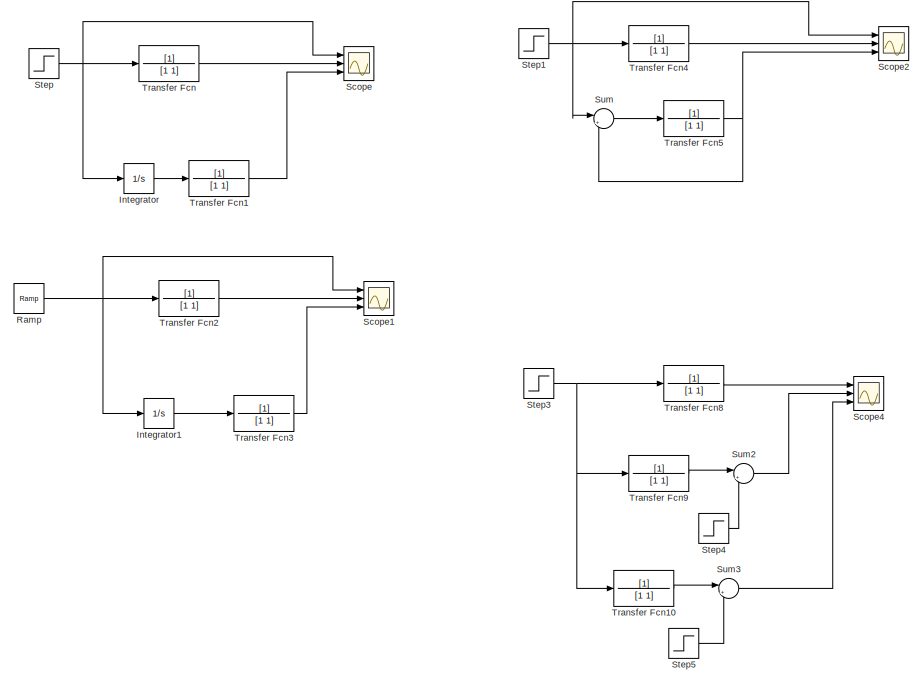
[diagram: root canvas - part 1/2, left side, full height]
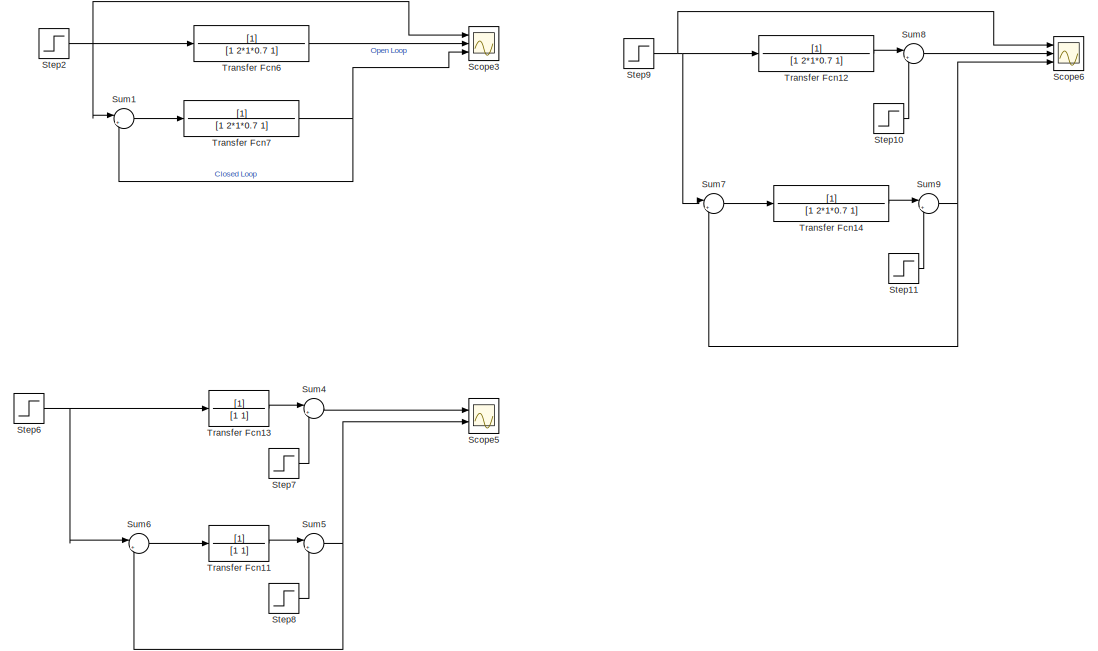
[diagram: root canvas - part 2/2, right side, full height]
MODEL slx_0609dc672f6a
KIND model
CONFIG AbsTol = auto
CONFIG EnableMultiTasking = off
CONFIG FixedStep = auto
CONFIG MaxStep = auto
CONFIG MinStep = auto
CONFIG RelTol = 1e-3
CONFIG SampleTimeConstraint = Unconstrained
CONFIG SolverName = VariableStepAuto
CONFIG StartTime = 0.0
CONFIG StopTime = 10.0
BLOCK [Integrator] Integrator
  Ports = [1, 1]
BLOCK [Integrator] Integrator1
  Ports = [1, 1]
BLOCK [Reference] Ramp  REF=simulink/Sources/Ramp
  Ports = [0, 1]
  SourceBlock = simulink/Sources/Ramp
  SourceProductBaseCode = SL
  SourceType = Ramp
BLOCK [Scope] Scope
  Floating = off
  NumInputPorts = 3
  Ports = [3]
  ScopeSpecificationString = Simulink.scopes.TimeScopeBlockCfg('CurrentConfiguration', extmgr.ConfigurationSet(extmgr.Configuration('Core','General UI',true),extmgr.Configuration('Core','Source UI',true),extmgr.Configuration('Sources','WiredSimulink',true),extmgr.Configuration('Visuals','Time Domain',true,'SerializedDisplays',{struct('MinYLimReal','-1.00002','MaxYLimReal','9.00014','YLabelReal','','MinYLimMag','0.00000','MaxY...<+1410ch>
BLOCK [Scope] Scope1
  Floating = off
  NumInputPorts = 3
  Ports = [3]
  ScopeSpecificationString = Simulink.scopes.TimeScopeBlockCfg('CurrentConfiguration', extmgr.ConfigurationSet(extmgr.Configuration('Core','General UI',true),extmgr.Configuration('Core','Source UI',true),extmgr.Configuration('Sources','WiredSimulink',true,'DataLoggingVariableName','ScopeData1'),extmgr.Configuration('Visuals','Time Domain',true,'SerializedDisplays',{struct('MinYLimReal','-1.125','MaxYLimReal','10.125','YLabelR...<+1406ch>
BLOCK [Scope] Scope2
  Floating = off
  NumInputPorts = 3
  Ports = [3]
  ScopeSpecificationString = Simulink.scopes.TimeScopeBlockCfg('CurrentConfiguration', extmgr.ConfigurationSet(extmgr.Configuration('Core','General UI',true),extmgr.Configuration('Core','Source UI',true),extmgr.Configuration('Sources','WiredSimulink',true,'DataLoggingVariableName','ScopeData2'),extmgr.Configuration('Visuals','Time Domain',true,'SerializedDisplays',{struct('MinYLimReal','-0.125','MaxYLimReal','1.125','YLabelRe...<+1409ch>
BLOCK [Scope] Scope3
  Floating = off
  NumInputPorts = 3
  Ports = [3]
  ScopeSpecificationString = Simulink.scopes.TimeScopeBlockCfg('CurrentConfiguration', extmgr.ConfigurationSet(extmgr.Configuration('Core','General UI',true),extmgr.Configuration('Core','Source UI',true),extmgr.Configuration('Sources','WiredSimulink',true,'DataLoggingVariableName','ScopeData3'),extmgr.Configuration('Visuals','Time Domain',true,'SerializedDisplays',{struct('MinYLimReal','-0.13075','MaxYLimReal','1.17674','YLab...<+1415ch>
BLOCK [Scope] Scope4
  Floating = off
  NumInputPorts = 3
  Ports = [3]
  ScopeSpecificationString = Simulink.scopes.TimeScopeBlockCfg('CurrentConfiguration', extmgr.ConfigurationSet(extmgr.Configuration('Core','General UI',true),extmgr.Configuration('Core','Source UI',true),extmgr.Configuration('Sources','WiredSimulink',true,'DataLoggingVariableName','ScopeData4'),extmgr.Configuration('Visuals','Time Domain',true,'SerializedDisplays',{struct('MinYLimReal','-0.21248','MaxYLimReal','1.91236','YLab...<+1441ch>
BLOCK [Scope] Scope5
  Floating = off
  NumInputPorts = 2
  Ports = [2]
  ScopeSpecificationString = Simulink.scopes.TimeScopeBlockCfg('CurrentConfiguration', extmgr.ConfigurationSet(extmgr.Configuration('Core','General UI',true),extmgr.Configuration('Core','Source UI',true),extmgr.Configuration('Sources','WiredSimulink',true,'DataLoggingVariableName','ScopeData5'),extmgr.Configuration('Visuals','Time Domain',true,'SerializedDisplays',{struct('MinYLimReal','-0.34339','MaxYLimReal','0.99889','YLab...<+1425ch>
BLOCK [Scope] Scope6
  Floating = off
  NumInputPorts = 3
  Ports = [3]
  ScopeSpecificationString = Simulink.scopes.TimeScopeBlockCfg('CurrentConfiguration', extmgr.ConfigurationSet(extmgr.Configuration('Core','General UI',true),extmgr.Configuration('Core','Source UI',true),extmgr.Configuration('Sources','WiredSimulink',true,'DataLoggingVariableName','ScopeData6'),extmgr.Configuration('Visuals','Time Domain',true,'SerializedDisplays',{struct('MinYLimReal','-0.21825','MaxYLimReal','1.96424','YLab...<+1434ch>
BLOCK [Step] Step
  SampleTime = 0
BLOCK [Step] Step1
  NameLocation = right
  SampleTime = 0
BLOCK [Step] Step10
  After = -0.7
  SampleTime = 0
  Time = 3
BLOCK [Step] Step11
  After = -.7
  SampleTime = 0
  Time = 3
BLOCK [Step] Step2
  NameLocation = right
  SampleTime = 0
BLOCK [Step] Step3
  SampleTime = 0
BLOCK [Step] Step4
  After = 0.7
  SampleTime = 0
  Time = 3
BLOCK [Step] Step5
  After = 0.7
  SampleTime = 0
  Time = 3
BLOCK [Step] Step6
  SampleTime = 0
BLOCK [Step] Step7
  After = 0.7
  SampleTime = 0
  Time = 3
BLOCK [Step] Step8
  After = 0.7
  SampleTime = 0
  Time = 3
BLOCK [Step] Step9
  NameLocation = right
  SampleTime = 0
BLOCK [Sum] Sum
  Inputs = |+-
  Ports = [2, 1]
BLOCK [Sum] Sum1
  Inputs = |+-
  Ports = [2, 1]
BLOCK [Sum] Sum2
  Inputs = |+-
  Ports = [2, 1]
BLOCK [Sum] Sum3
  Inputs = |++
  Ports = [2, 1]
BLOCK [Sum] Sum4
  Inputs = |+-
  Ports = [2, 1]
BLOCK [Sum] Sum5
  Inputs = |+-
  Ports = [2, 1]
BLOCK [Sum] Sum6
  Inputs = |+-
  Ports = [2, 1]
BLOCK [Sum] Sum7
  Inputs = |+-
  Ports = [2, 1]
BLOCK [Sum] Sum8
  Inputs = |+-
  Ports = [2, 1]
BLOCK [Sum] Sum9
  Inputs = |+-
  Ports = [2, 1]
BLOCK [TransferFcn] Transfer Fcn
  Denominator = [1 1]
BLOCK [TransferFcn] Transfer Fcn1
  Denominator = [1 1]
BLOCK [TransferFcn] Transfer Fcn10
  Denominator = [1 1]
BLOCK [TransferFcn] Transfer Fcn11
  Denominator = [1 1]
BLOCK [TransferFcn] Transfer Fcn12
  Denominator = [1 2*1*0.7 1]
BLOCK [TransferFcn] Transfer Fcn13
  Denominator = [1 1]
BLOCK [TransferFcn] Transfer Fcn14
  Denominator = [1 2*1*0.7 1]
BLOCK [TransferFcn] Transfer Fcn2
  Denominator = [1 1]
BLOCK [TransferFcn] Transfer Fcn3
  Denominator = [1 1]
BLOCK [TransferFcn] Transfer Fcn4
  Denominator = [1 1]
BLOCK [TransferFcn] Transfer Fcn5
  Denominator = [1 1]
BLOCK [TransferFcn] Transfer Fcn6
  Denominator = [1 2*1*0.7 1]
BLOCK [TransferFcn] Transfer Fcn7
  Denominator = [1 2*1*0.7 1]
BLOCK [TransferFcn] Transfer Fcn8
  Denominator = [1 1]
BLOCK [TransferFcn] Transfer Fcn9
  Denominator = [1 1]
LINE Integrator1:1 -> Transfer Fcn3:1
LINE Integrator:1 -> Transfer Fcn1:1
NET Ramp:1 -> Integrator1:1, Scope1:1, Transfer Fcn2:1
LINE Step10:1 -> Sum8:2
LINE Step11:1 -> Sum9:2
NET Step1:1 -> Scope2:1, Sum:1, Transfer Fcn4:1
NET Step2:1 -> Scope3:1, Sum1:1, Transfer Fcn6:1
NET Step3:1 -> Transfer Fcn10:1, Transfer Fcn8:1, Transfer Fcn9:1
LINE Step4:1 -> Sum2:2
LINE Step5:1 -> Sum3:2
NET Step6:1 -> Sum6:1, Transfer Fcn13:1
LINE Step7:1 -> Sum4:2
LINE Step8:1 -> Sum5:2
NET Step9:1 -> Scope6:1, Sum7:1, Transfer Fcn12:1
NET Step:1 -> Integrator:1, Scope:1, Transfer Fcn:1
LINE Sum1:1 -> Transfer Fcn7:1
LINE Sum2:1 -> Scope4:2
LINE Sum3:1 -> Scope4:3
LINE Sum4:1 -> Scope5:1
NET Sum5:1 -> Scope5:2, Sum6:2
LINE Sum6:1 -> Transfer Fcn11:1
LINE Sum7:1 -> Transfer Fcn14:1
LINE Sum8:1 -> Scope6:2
NET Sum9:1 -> Scope6:3, Sum7:2
LINE Sum:1 -> Transfer Fcn5:1
LINE Transfer Fcn10:1 -> Sum3:1
LINE Transfer Fcn11:1 -> Sum5:1
LINE Transfer Fcn12:1 -> Sum8:1
LINE Transfer Fcn13:1 -> Sum4:1
LINE Transfer Fcn14:1 -> Sum9:1
LINE Transfer Fcn1:1 -> Scope:3
LINE Transfer Fcn2:1 -> Scope1:2
LINE Transfer Fcn3:1 -> Scope1:3
LINE Transfer Fcn4:1 -> Scope2:2
NET Transfer Fcn5:1 -> Scope2:3, Sum:2
LINE Transfer Fcn6:1 -> Scope3:2
NET Transfer Fcn7:1 -> Scope3:3, Sum1:2
LINE Transfer Fcn8:1 -> Scope4:1
LINE Transfer Fcn9:1 -> Sum2:1
LINE Transfer Fcn:1 -> Scope:2
note: NET lines group one-source signal fan-out (src -> all destinations, sorted); 1:1 wires keep LINE
